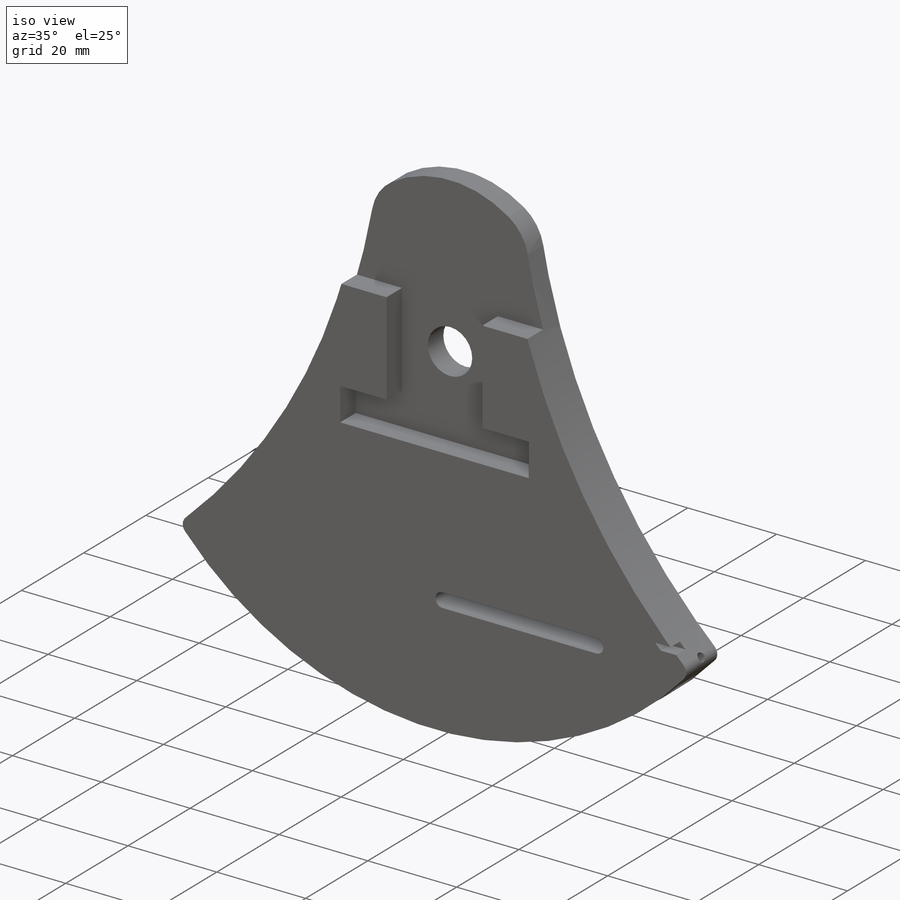
[diagram: iso view]
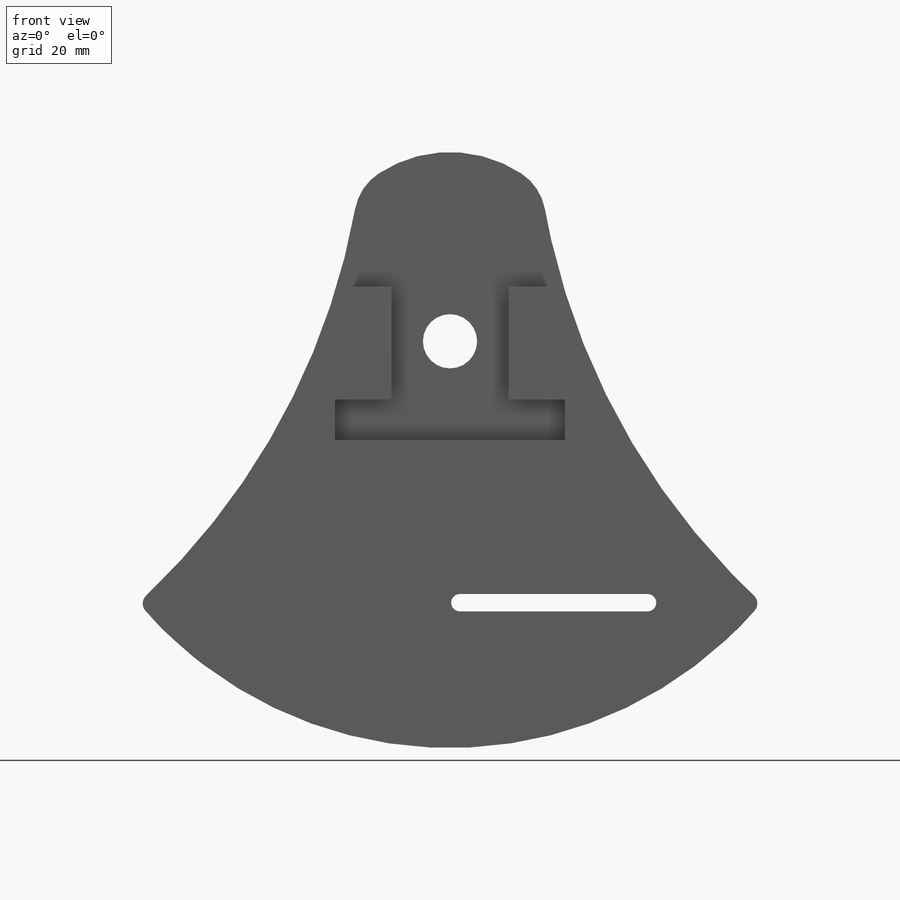
[diagram: front view]
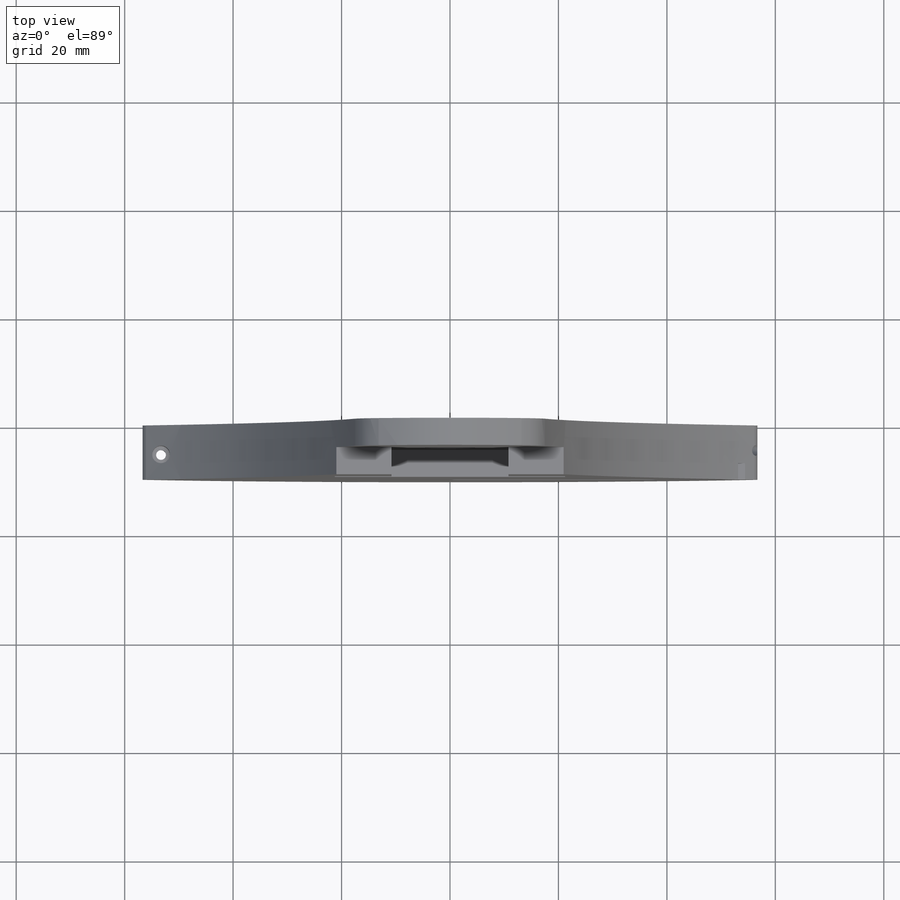
[diagram: top view]
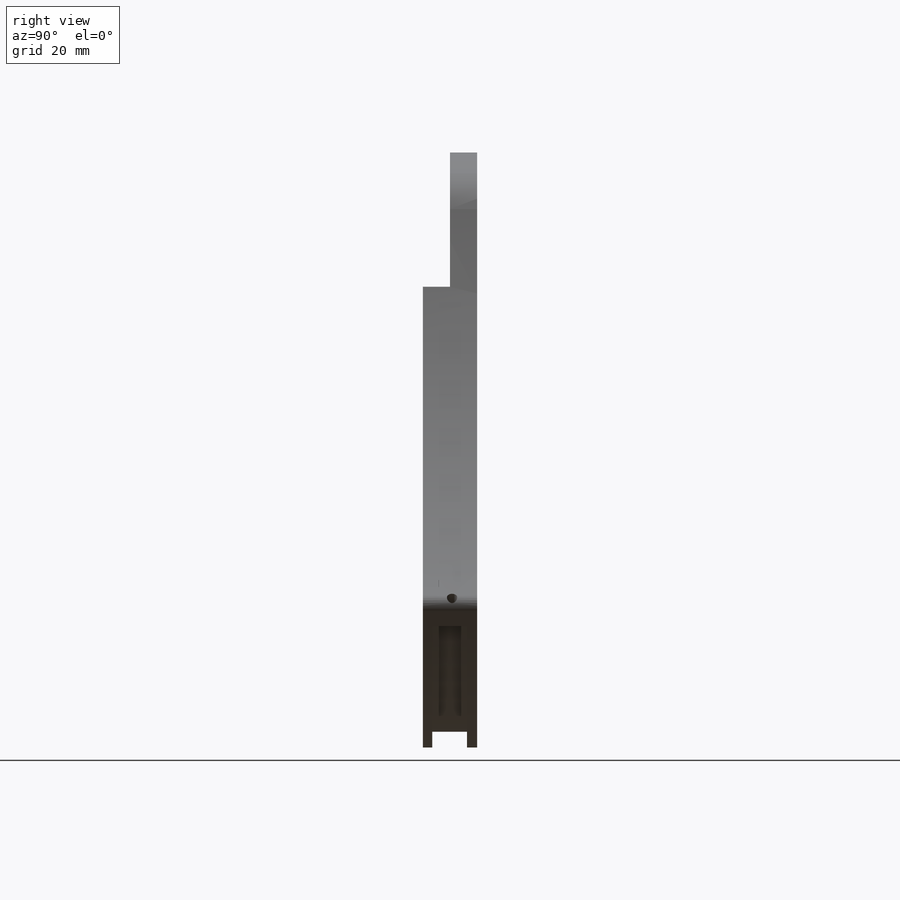
[diagram: right view]
SOLIDWORKS PART (.sldprt)
format: sldprt  version: not decoded by parser v0  size: 417,280 bytes
history: native  units: mm
features: sketch x13, cut_extrude x8, plane x3, fillet x3, material x1, extrude x1 (+13 scaffold rows collapsed)
feature tree (42):
  scaffold x13  (default folders/planes/origin — collapsed)
  material  "Material <not specified>"
  sketch  "Sketch1"  dims[c1.D1=10.0mm c1.D2=150.0mm c1.D3=135.0deg c2.D2=50.0mm c2.D3=135.0deg c3.D3=70.0mm c3.D4=30.0mm c3.D5=10.0mm c3.D6=5.0mm c3.D7=~6.247213mm c4.D5=~203.58633mm c4.D2=75.0mm c4.D3=50.0mm c4.D4=~76.337468deg c5.D3=45.0deg c6.D3=60.0mm c6.D4=75.0mm c7.D4=5.0deg c7.D5=75.0mm c8.D5=5.0deg]
  extrude  "Body"  Depth=10mm
  sketch  "Sketch2"  dims[D1=10.0mm]
  cut_extrude  "Attachment Hole"  [1 undecoded]
  sketch  "Sketch17"  dims[D1=~10.450302mm D2=~20.853194mm D3=~42.482414mm D4=~10.448308mm D5=~10.448308mm D6=~20.853194mm]
  sketch  "Sketch20"
  plane  "Plane1"
  plane  "Plane2"
  sketch  "Sketch21"  dims[c1.D1=~3.240278mm c1.D3=~1.80762mm c2.D1=5.0mm c2.D2=~2.321566mm c3.D2=90.0deg c4.D2=5.0mm c4.D3=~3.69077mm c4.D1=5.0mm c4.D4=4.0mm]
  sketch  "Sketch22"  dims[D1=3.0mm]
  sketch  "Sketch23"  dims[D1=3.2mm]
  fillet  "Fillet3"  Radius=2mm
  fillet  "Fillet4"  Radius=2mm
  cut_extrude  "Horiz Slot"  [1 undecoded]
  sketch  "Sketch26"
  cut_extrude  "Cut-Extrude15"  Depth=3mm
  sketch  "Sketch27"
  cut_extrude  "Cut-Extrude16"  [1 undecoded]
  cut_extrude  "Cut-Extrude17"  Depth=5mm
  sketch  "Sketch29"
  plane  "Plane3"
  fillet  "Fillet5"  Radius=10mm
  sketch  "Sketch31"  dims[D1=1.9mm]
  cut_extrude  "Cut-Extrude24"  [1 undecoded]
  cut_extrude  "Cut-Extrude25"  [1 undecoded]
  sketch  "Sketch32"  dims[D1=~1.517077mm]
  sketch  "Sketch33"  dims[D1=3.25mm]
  cut_extrude  "Cut-Extrude27"  Depth=22.35mm
decode coverage: 16 of 25 modeling features carry decoded parameters
note: ~ marks probable driven/reference dimensions
note: 5 parameter values undecoded
summary: no parameter record found for 5 features
note: suppression state not decoded; provenance and decode notes live in map.json
